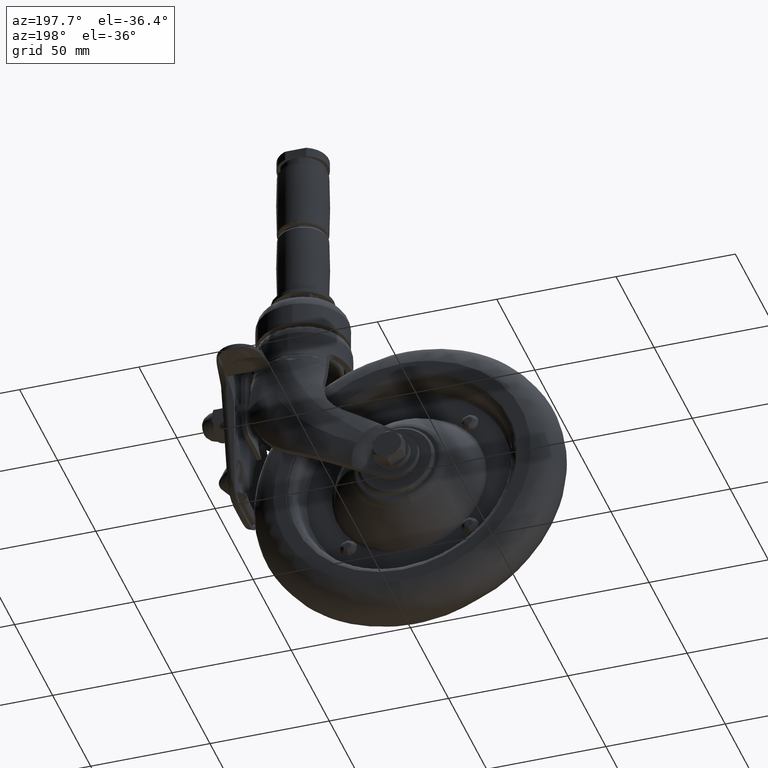
[diagram: clean part render]
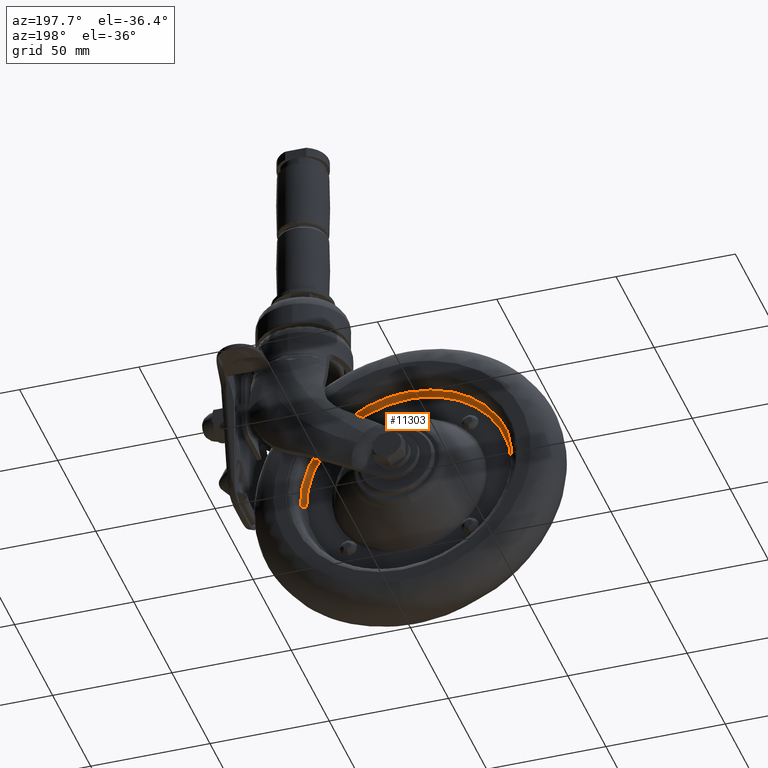
[diagram: same view with one face highlighted and labeled with its STEP entity id]
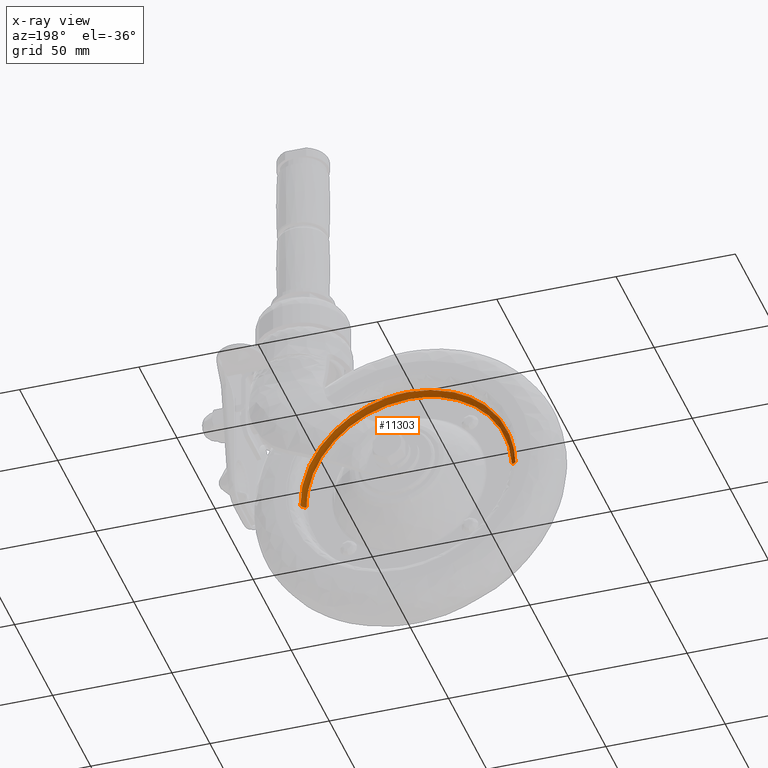
[diagram: x-ray of the same camera — body ghosted, the highlighted face saturated]
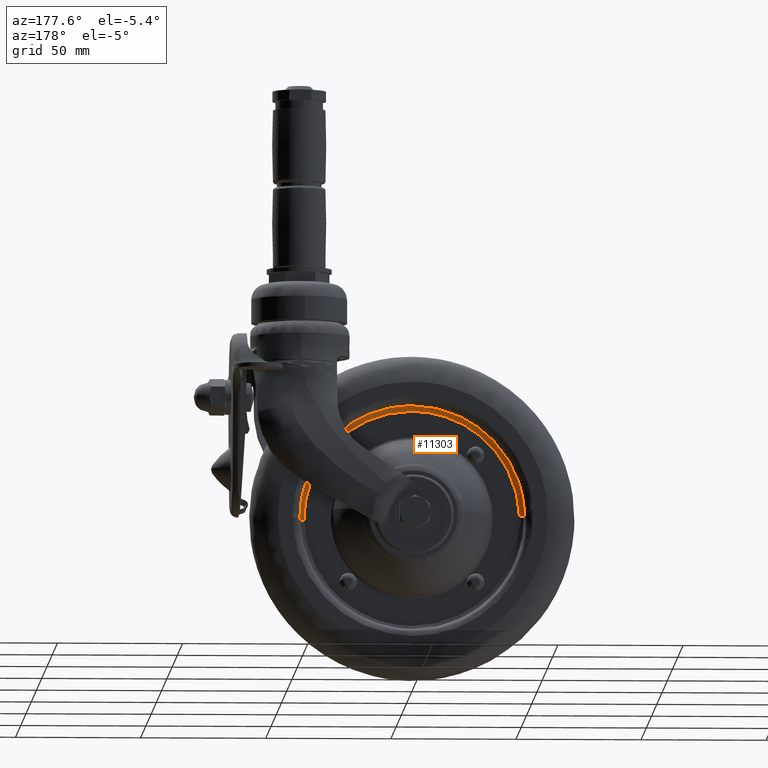
[diagram: same view with one face highlighted and labeled with its STEP entity id]
A machine part, auxiliary view. The second image highlights one B-rep face of the part: STEP entity #11303.
The next image is the same camera in x-ray: the body ghosted, the highlighted face saturated — about 0% of this face is hidden behind the body in this view.
A second angle (auxiliary view) of the same face is appended — the face is thin or edge-on in the first view.
In plain terms, the highlighted face is a freeform B-spline surface patch.
Its self-contained STEP definition (entity closure, byte-faithful):
#9655=CARTESIAN_POINT('',(0.0,3.500000000000000,45.0));
#9656=VERTEX_POINT('',#9655);
#9657=CARTESIAN_POINT('',(-32.249294243441582,3.499999801371303,31.384439150632140));
#9658=VERTEX_POINT('',#9657);
#9659=CARTESIAN_POINT('',(0.0,3.500000000000000,45.0));
#9660=CARTESIAN_POINT('',(-18.998873185731185,3.500000000000000,45.0));
#9661=CARTESIAN_POINT('',(-32.249294243441589,3.499999801371303,31.384439150632140));
#9669=(BOUNDED_CURVE()B_SPLINE_CURVE(2,(#9659,#9660,#9661),.UNSPECIFIED.,.F.,.U.)B_SPLINE_CURVE_WITH_KNOTS((3,3),(0.500000000000000,0.627050652604179),.UNSPECIFIED.)CURVE()GEOMETRIC_REPRESENTATION_ITEM()RATIONAL_B_SPLINE_CURVE((1.0,0.851150901625649,0.853592803955338))REPRESENTATION_ITEM(''));
#9670=EDGE_CURVE('',#9656,#9658,#9669,.T.);
#9763=CARTESIAN_POINT('',(44.985788517747793,3.499999360023999,-1.130854294970114));
#9764=VERTEX_POINT('',#9763);
#9778=CARTESIAN_POINT('',(44.985788517747793,3.499999360023999,-1.130854294970114));
#9779=CARTESIAN_POINT('',(45.000000000000014,3.500000000000000,-0.565516445572023));
#9780=CARTESIAN_POINT('',(45.0,3.500000000000000,0.0));
#9781=CARTESIAN_POINT('',(45.0,3.499999999999999,45.0));
#9782=CARTESIAN_POINT('',(0.0,3.500000000000000,45.0));
#9790=(BOUNDED_CURVE()B_SPLINE_CURVE(2,(#9778,#9779,#9780,#9781,#9782),.UNSPECIFIED.,.F.,.U.)B_SPLINE_CURVE_WITH_KNOTS((3,2,3),(0.245579891769653,0.250000000000000,0.500000000000000),.UNSPECIFIED.)CURVE()GEOMETRIC_REPRESENTATION_ITEM()RATIONAL_B_SPLINE_CURVE((0.989826157681226,0.994821521091639,1.0,0.707106781186548,1.0))REPRESENTATION_ITEM(''));
#9791=EDGE_CURVE('',#9764,#9656,#9790,.T.);
#9810=CARTESIAN_POINT('',(-44.985788517747793,3.499999360023999,1.130854294970120));
#9811=VERTEX_POINT('',#9810);
#9812=CARTESIAN_POINT('',(-32.249294243441589,3.499999801371303,31.384439150632140));
#9813=CARTESIAN_POINT('',(-44.542824072602357,3.499999617088475,18.752138432525083));
#9814=CARTESIAN_POINT('',(-44.985788517747778,3.499999360023998,1.130854294970120));
#9822=(BOUNDED_CURVE()B_SPLINE_CURVE(2,(#9812,#9813,#9814),.UNSPECIFIED.,.F.,.U.)B_SPLINE_CURVE_WITH_KNOTS((3,3),(0.627050652604179,0.745579891769652),.UNSPECIFIED.)CURVE()GEOMETRIC_REPRESENTATION_ITEM()RATIONAL_B_SPLINE_CURVE((0.853592803955338,0.855870925470826,0.989826157681224))REPRESENTATION_ITEM(''));
#9823=EDGE_CURVE('',#9658,#9811,#9822,.T.);
#11179=CARTESIAN_POINT('',(-42.986420139943426,1.500000000000000,1.080594104088993));
#11180=VERTEX_POINT('',#11179);
#11196=CARTESIAN_POINT('',(42.986420139943426,1.500000000000000,-1.080594104088997));
#11197=VERTEX_POINT('',#11196);
#11211=CARTESIAN_POINT('',(44.985788517747785,3.499999360023999,-1.130854294970114));
#11212=CARTESIAN_POINT('',(44.985787238201105,1.500000001523895,-1.130854262784876));
#11213=CARTESIAN_POINT('',(42.986420139943441,1.500000000000000,-1.080594104088997));
#11221=(BOUNDED_CURVE()B_SPLINE_CURVE(2,(#11211,#11212,#11213),.UNSPECIFIED.,.F.,.U.)B_SPLINE_CURVE_WITH_KNOTS((3,3),(-1.723440623072056,-0.263586879716418),.UNSPECIFIED.)CURVE()GEOMETRIC_REPRESENTATION_ITEM()RATIONAL_B_SPLINE_CURVE((0.883897334908597,0.626638845573622,0.888510408779633))REPRESENTATION_ITEM(''));
#11222=EDGE_CURVE('',#9764,#11197,#11221,.T.);
#11227=CARTESIAN_POINT('',(-44.985788517747778,3.499999360023999,1.130854294970120));
#11228=CARTESIAN_POINT('',(-44.985787238201105,1.500000001523884,1.130854262784882));
#11229=CARTESIAN_POINT('',(-42.986420139943434,1.500000000000000,1.080594104088993));
#11237=(BOUNDED_CURVE()B_SPLINE_CURVE(2,(#11227,#11228,#11229),.UNSPECIFIED.,.F.,.U.)B_SPLINE_CURVE_WITH_KNOTS((3,3),(-1.723440623072056,-0.263586879716412),.UNSPECIFIED.)CURVE()GEOMETRIC_REPRESENTATION_ITEM()RATIONAL_B_SPLINE_CURVE((0.883897334908597,0.626638845573621,0.888510408779635))REPRESENTATION_ITEM(''));
#11238=EDGE_CURVE('',#9811,#11180,#11237,.T.);
#11243=CARTESIAN_POINT('',(44.980922668587070,3.639448391482199,-1.130731977067045));
#11244=CARTESIAN_POINT('',(46.111654645654120,3.639448391482200,43.850190691520012));
#11245=CARTESIAN_POINT('',(1.130731977067049,3.639448391482199,44.980922668587070));
#11246=CARTESIAN_POINT('',(-43.850190691520012,3.639448391482200,46.111654645654120));
#11247=CARTESIAN_POINT('',(-44.980922668587070,3.639448391482199,1.130731977067051));
#11248=CARTESIAN_POINT('',(45.141217955244400,1.345328091702281,-1.134761485481802));
#11249=CARTESIAN_POINT('',(46.275979440726232,1.345328091702281,44.006456469762618));
#11250=CARTESIAN_POINT('',(1.134761485481805,1.345328091702281,45.141217955244400));
#11251=CARTESIAN_POINT('',(-44.006456469762597,1.345328091702281,46.275979440726232));
#11252=CARTESIAN_POINT('',(-45.141217955244400,1.345328091702281,1.134761485481807));
#11253=CARTESIAN_POINT('',(42.847762326381066,1.504815331442346,-1.077108519208808));
#11254=CARTESIAN_POINT('',(43.924870845589872,1.504815331442346,41.770653807172252));
#11255=CARTESIAN_POINT('',(1.077108519208811,1.504815331442346,42.847762326381066));
#11256=CARTESIAN_POINT('',(-41.770653807172252,1.504815331442346,43.924870845589872));
#11257=CARTESIAN_POINT('',(-42.847762326381066,1.504815331442346,1.077108519208814));
#11265=(BOUNDED_SURFACE()B_SPLINE_SURFACE(2,2,((#11243,#11248,#11253),(#11244,#11249,#11254),(#11245,#11250,#11255),(#11246,#11251,#11256),(#11247,#11252,#11257)),.UNSPECIFIED.,.F.,.F.,.U.)B_SPLINE_SURFACE_WITH_KNOTS((3,2,3),(3,3),(0.0,74.550376677425376,149.100753354850810),(0.0,3.644741243817724),.UNSPECIFIED.)GEOMETRIC_REPRESENTATION_ITEM()RATIONAL_B_SPLINE_SURFACE(((0.910892946007135,0.599412883198042,0.915966720026040),(0.644098579056637,0.423848914439916,0.647686279071612),(0.910892946007135,0.599412883198042,0.915966720026040),(0.644098579056637,0.423848914439916,0.647686279071612),(0.910892946007135,0.599412883198042,0.915966720026040)))REPRESENTATION_ITEM('')SURFACE());
#11266=CARTESIAN_POINT('',(0.0,1.500000000000000,43.0));
#11267=VERTEX_POINT('',#11266);
#11268=CARTESIAN_POINT('',(-42.986420139943441,1.500000000000001,1.080594104088993));
#11269=CARTESIAN_POINT('',(-41.932648675755544,1.500000000000001,43.000000000000007));
#11270=CARTESIAN_POINT('',(0.0,1.500000000000000,43.0));
#11278=(BOUNDED_CURVE()B_SPLINE_CURVE(2,(#11268,#11269,#11270),.UNSPECIFIED.,.F.,.U.)B_SPLINE_CURVE_WITH_KNOTS((3,3),(0.254420108230244,0.500000000000000),.UNSPECIFIED.)CURVE()GEOMETRIC_REPRESENTATION_ITEM()RATIONAL_B_SPLINE_CURVE((0.989826157681460,0.712285260094788,1.0))REPRESENTATION_ITEM(''));
#11279=EDGE_CURVE('',#11180,#11267,#11278,.T.);
#11280=ORIENTED_EDGE('',*,*,#11279,.F.);
#11281=ORIENTED_EDGE('',*,*,#11238,.F.);
#11282=ORIENTED_EDGE('',*,*,#9823,.F.);
#11283=ORIENTED_EDGE('',*,*,#9670,.F.);
#11284=ORIENTED_EDGE('',*,*,#9791,.F.);
#11285=ORIENTED_EDGE('',*,*,#11222,.T.);
#11286=CARTESIAN_POINT('',(0.0,1.500000000000000,43.0));
#11287=CARTESIAN_POINT('',(42.999999999999993,1.500000000000000,42.999999999999993));
#11288=CARTESIAN_POINT('',(43.0,1.500000000000000,0.0));
#11289=CARTESIAN_POINT('',(43.0,1.500000000000000,-0.540382381311706));
#11290=CARTESIAN_POINT('',(42.986420139943441,1.500000000000000,-1.080594104088997));
#11298=(BOUNDED_CURVE()B_SPLINE_CURVE(2,(#11286,#11287,#11288,#11289,#11290),.UNSPECIFIED.,.F.,.U.)B_SPLINE_CURVE_WITH_KNOTS((3,2,3),(0.500000000000000,0.750000000000000,0.754420108230244),.UNSPECIFIED.)CURVE()GEOMETRIC_REPRESENTATION_ITEM()RATIONAL_B_SPLINE_CURVE((1.0,0.707106781186548,1.0,0.994821521091759,0.989826157681459))REPRESENTATION_ITEM(''));
#11299=EDGE_CURVE('',#11267,#11197,#11298,.T.);
#11300=ORIENTED_EDGE('',*,*,#11299,.F.);
#11301=EDGE_LOOP('',(#11280,#11281,#11282,#11283,#11284,#11285,#11300));
#11302=FACE_OUTER_BOUND('',#11301,.T.);
#11303=ADVANCED_FACE('',(#11302),#11265,.F.);